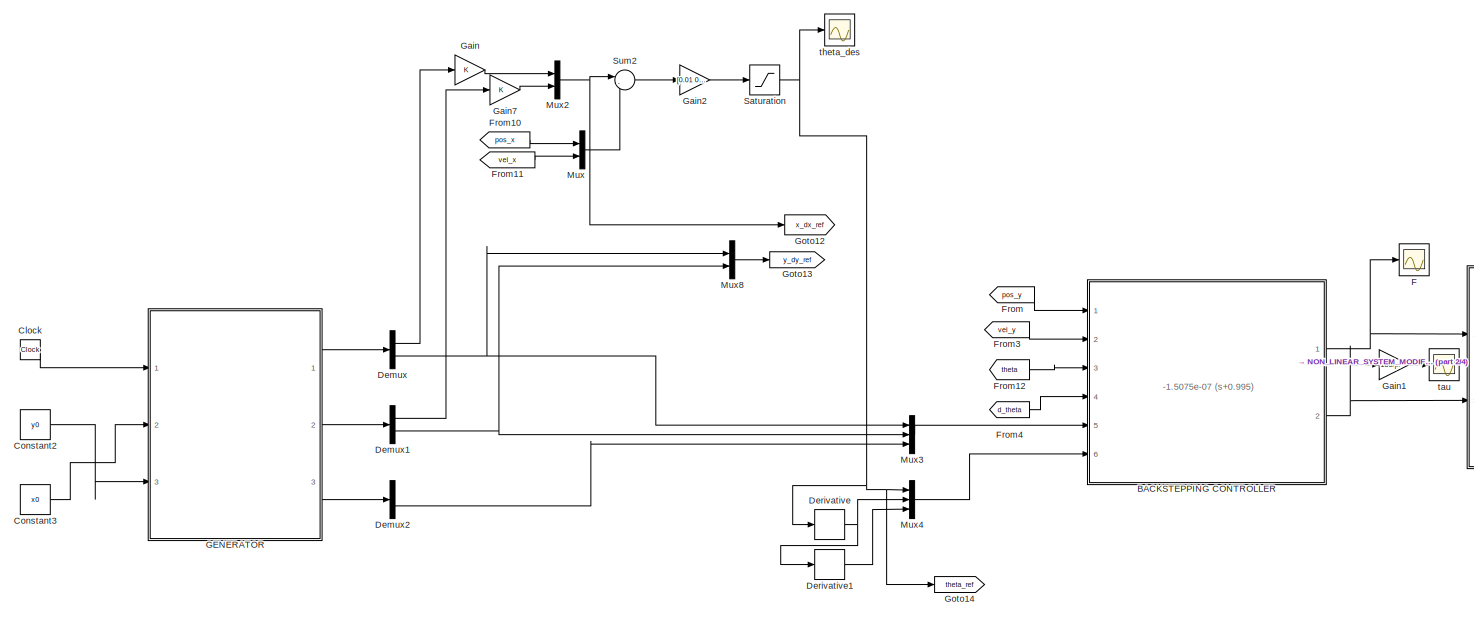
[diagram: root canvas - part 1/4, top left region]
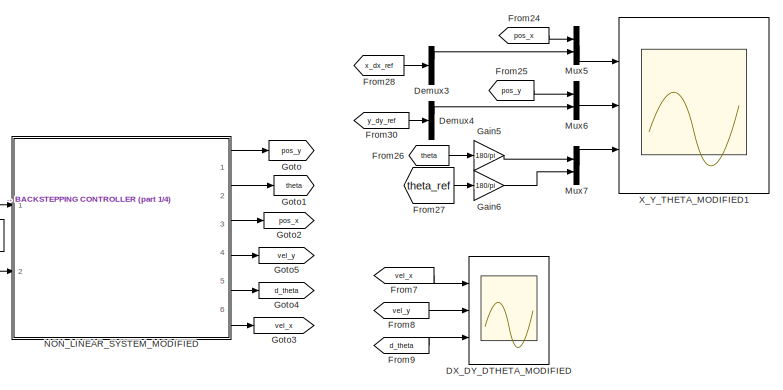
[diagram: root canvas - part 2/4, top right region]
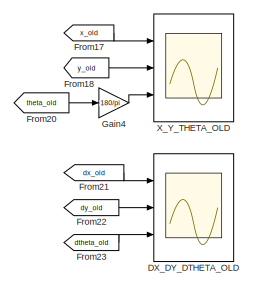
[diagram: root canvas - part 3/4, bottom right region]
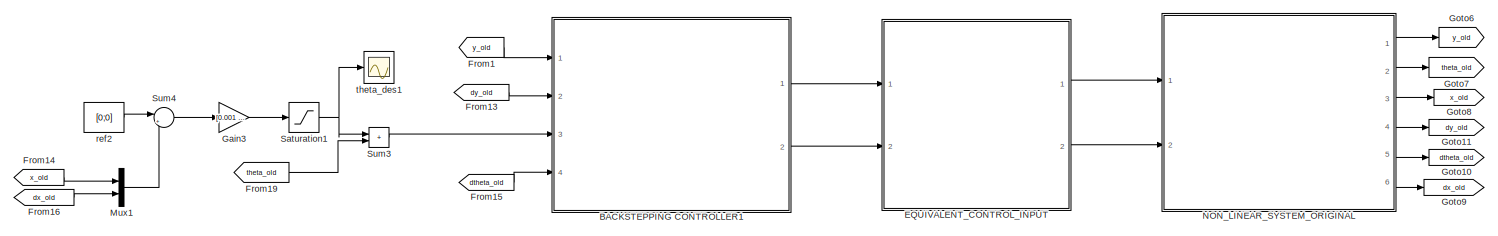
[diagram: root canvas - part 4/4, bottom center region]
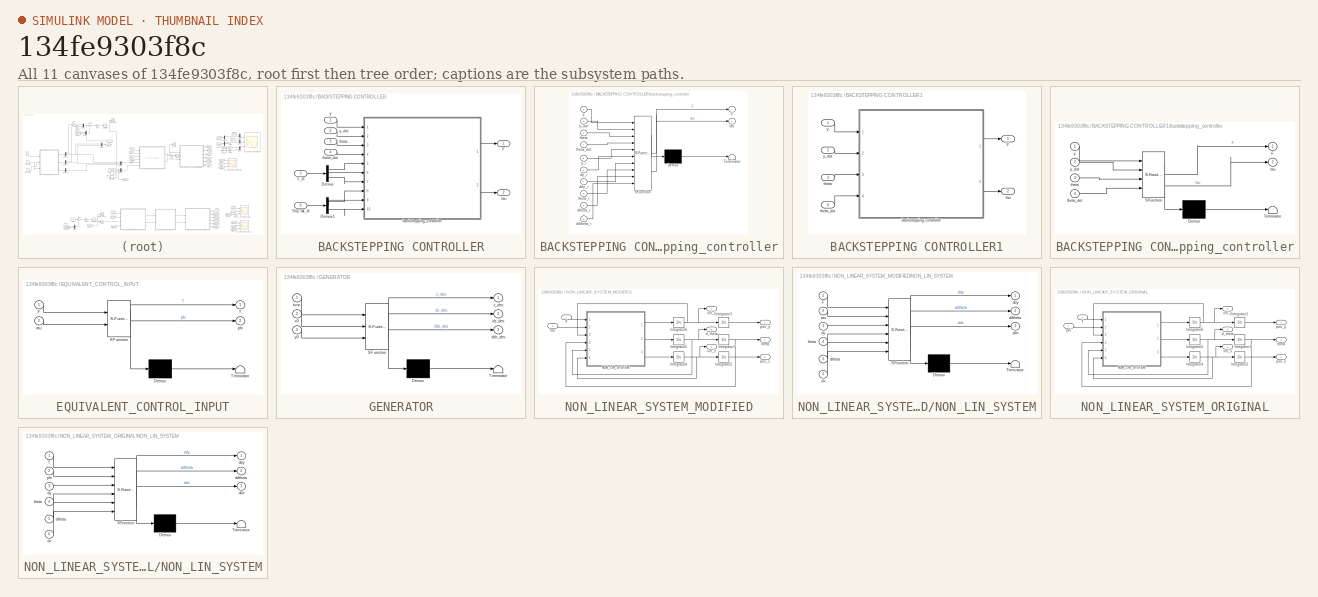
[diagram: thumbnail index - all 11 canvases of the model, root first then tree order]
MODEL slx_134fe9303f8c
KIND model
CONFIG AbsTol = auto
CONFIG EnableMultiTasking = off
CONFIG FixedStep = 1e-3
CONFIG MaxStep = auto
CONFIG MinStep = auto
CONFIG RelTol = 1e-3
CONFIG SampleTimeConstraint = Unconstrained
CONFIG SolverName = FixedStepAuto
CONFIG StartTime = 0.0
CONFIG StopTime = 500
BLOCK [SubSystem] BACKSTEPPING CONTROLLER
  Ports = [6, 2]
  RequestExecContextInheritance = off
BLOCK [Demux] BACKSTEPPING CONTROLLER/Demux
  Outputs = 3
  Ports = [1, 3]
BLOCK [Demux] BACKSTEPPING CONTROLLER/Demux1
  Outputs = 3
  Ports = [1, 3]
BLOCK [Outport] BACKSTEPPING CONTROLLER/F
BLOCK [Inport] BACKSTEPPING CONTROLLER/THETA_R
  Port = 6
BLOCK [Inport] BACKSTEPPING CONTROLLER/Y_R
  Port = 5
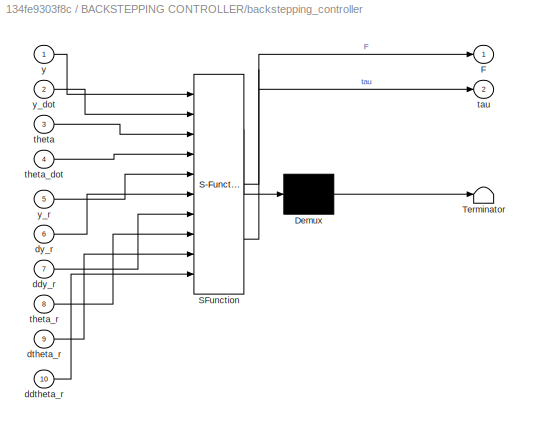
BLOCK [SubSystem] BACKSTEPPING CONTROLLER/backstepping_controller
  ErrorFcn = Stateflow.Translate.translate
  PermitHierarchicalResolution = ExplicitOnly
  Ports = [10, 2]
  RequestExecContextInheritance = off
  SFBlockType = MATLAB Function
  TreatAsAtomicUnit = on
BLOCK [Demux] BACKSTEPPING CONTROLLER/backstepping_controller/ Demux 
  Outputs = 1
  Ports = [1, 1]
BLOCK [S-Function] BACKSTEPPING CONTROLLER/backstepping_controller/ SFunction 
  EnableBusSupport = on
  FunctionName = sf_sfun
  Parameters = J_par,M_par,g_par,mu_y_par
  PortCounts = [10 3]
  Ports = [10, 3]
  SFcnIsStateOwnerBlock = off
  SFunctionDeploymentMode = off
  Tag = Stateflow S-Function 1
BLOCK [Terminator] BACKSTEPPING CONTROLLER/backstepping_controller/ Terminator 
BLOCK [Outport] BACKSTEPPING CONTROLLER/backstepping_controller/F
BLOCK [Inport] BACKSTEPPING CONTROLLER/backstepping_controller/ddtheta_r
  Port = 10
BLOCK [Inport] BACKSTEPPING CONTROLLER/backstepping_controller/ddy_r
  Port = 7
BLOCK [Inport] BACKSTEPPING CONTROLLER/backstepping_controller/dtheta_r
  Port = 9
BLOCK [Inport] BACKSTEPPING CONTROLLER/backstepping_controller/dy_r
  Port = 6
BLOCK [Outport] BACKSTEPPING CONTROLLER/backstepping_controller/tau
  Port = 2
BLOCK [Inport] BACKSTEPPING CONTROLLER/backstepping_controller/theta
  Port = 3
BLOCK [Inport] BACKSTEPPING CONTROLLER/backstepping_controller/theta_dot
  Port = 4
BLOCK [Inport] BACKSTEPPING CONTROLLER/backstepping_controller/theta_r
  Port = 8
BLOCK [Inport] BACKSTEPPING CONTROLLER/backstepping_controller/y
BLOCK [Inport] BACKSTEPPING CONTROLLER/backstepping_controller/y_dot
  Port = 2
BLOCK [Inport] BACKSTEPPING CONTROLLER/backstepping_controller/y_r
  Port = 5
BLOCK [Outport] BACKSTEPPING CONTROLLER/tau
  Port = 2
BLOCK [Inport] BACKSTEPPING CONTROLLER/theta
  Port = 3
BLOCK [Inport] BACKSTEPPING CONTROLLER/theta_dot
  Port = 4
BLOCK [Inport] BACKSTEPPING CONTROLLER/y
BLOCK [Inport] BACKSTEPPING CONTROLLER/y_dot
  Port = 2
BLOCK [SubSystem] BACKSTEPPING CONTROLLER1
  Ports = [4, 2]
  RequestExecContextInheritance = off
BLOCK [Outport] BACKSTEPPING CONTROLLER1/F
BLOCK [SubSystem] BACKSTEPPING CONTROLLER1/backstepping_controller
  ErrorFcn = Stateflow.Translate.translate
  PermitHierarchicalResolution = ExplicitOnly
  Ports = [4, 2]
  RequestExecContextInheritance = off
  SFBlockType = MATLAB Function
  TreatAsAtomicUnit = on
BLOCK [Demux] BACKSTEPPING CONTROLLER1/backstepping_controller/ Demux 
  Outputs = 1
  Ports = [1, 1]
BLOCK [S-Function] BACKSTEPPING CONTROLLER1/backstepping_controller/ SFunction 
  EnableBusSupport = on
  FunctionName = sf_sfun
  Parameters = J_par,M_par,g_par,mu_y_par
  PortCounts = [4 3]
  Ports = [4, 3]
  SFcnIsStateOwnerBlock = off
  SFunctionDeploymentMode = off
  Tag = Stateflow S-Function 4
BLOCK [Terminator] BACKSTEPPING CONTROLLER1/backstepping_controller/ Terminator 
BLOCK [Outport] BACKSTEPPING CONTROLLER1/backstepping_controller/F
BLOCK [Outport] BACKSTEPPING CONTROLLER1/backstepping_controller/tau
  Port = 2
BLOCK [Inport] BACKSTEPPING CONTROLLER1/backstepping_controller/theta
  Port = 3
BLOCK [Inport] BACKSTEPPING CONTROLLER1/backstepping_controller/theta_dot
  Port = 4
BLOCK [Inport] BACKSTEPPING CONTROLLER1/backstepping_controller/y
BLOCK [Inport] BACKSTEPPING CONTROLLER1/backstepping_controller/y_dot
  Port = 2
BLOCK [Outport] BACKSTEPPING CONTROLLER1/tau
  Port = 2
BLOCK [Inport] BACKSTEPPING CONTROLLER1/theta
  Port = 3
BLOCK [Inport] BACKSTEPPING CONTROLLER1/theta_dot
  Port = 4
BLOCK [Inport] BACKSTEPPING CONTROLLER1/y
BLOCK [Inport] BACKSTEPPING CONTROLLER1/y_dot
  Port = 2
BLOCK [Clock] Clock
BLOCK [Constant] Constant2
  Value = y0
BLOCK [Constant] Constant3
  Value = x0
BLOCK [Scope] DX_DY_DTHETA_MODIFIED
  Floating = off
  NumInputPorts = 3
  Ports = [3]
  ScopeSpecificationString = Simulink.scopes.TimeScopeBlockCfg('CurrentConfiguration', extmgr.ConfigurationSet(extmgr.Configuration('Core','General UI',true),extmgr.Configuration('Core','Source UI',true),extmgr.Configuration('Sources','WiredSimulink',true,'DataLoggingVariableName','ScopeData5'),extmgr.Configuration('Visuals','Time Domain',true,'SerializedDisplays',{struct('MinYLimReal','-2.51954','MaxYLimReal','1.10742','YLab...<+2740ch>
BLOCK [Scope] DX_DY_DTHETA_OLD
  Floating = off
  NumInputPorts = 3
  Ports = [3]
  ScopeSpecificationString = Simulink.scopes.TimeScopeBlockCfg('CurrentConfiguration', extmgr.ConfigurationSet(extmgr.Configuration('Core','General UI',true),extmgr.Configuration('Core','Source UI',true),extmgr.Configuration('Sources','WiredSimulink',true,'DataLoggingVariableName','ScopeData3'),extmgr.Configuration('Visuals','Time Domain',true,'SerializedDisplays',{struct('MinYLimReal','-3.50772','MaxYLimReal','1.67706','YLab...<+2764ch>
BLOCK [Demux] Demux
  Outputs = 2
  Ports = [1, 2]
BLOCK [Demux] Demux1
  Outputs = 2
  Ports = [1, 2]
BLOCK [Demux] Demux2
  Outputs = 2
  Ports = [1, 2]
BLOCK [Demux] Demux3
  Outputs = 2
  Ports = [1, 2]
BLOCK [Demux] Demux4
  Outputs = 2
  Ports = [1, 2]
BLOCK [Derivative] Derivative
BLOCK [Derivative] Derivative1
BLOCK [SubSystem] EQUIVALENT_CONTROL_INPUT
  ErrorFcn = Stateflow.Translate.translate
  PermitHierarchicalResolution = ExplicitOnly
  Ports = [2, 2]
  RequestExecContextInheritance = off
  SFBlockType = MATLAB Function
  TreatAsAtomicUnit = on
BLOCK [Demux] EQUIVALENT_CONTROL_INPUT/ Demux 
  Outputs = 1
  Ports = [1, 1]
BLOCK [S-Function] EQUIVALENT_CONTROL_INPUT/ SFunction 
  EnableBusSupport = on
  FunctionName = sf_sfun
  Parameters = l_par
  PortCounts = [2 3]
  Ports = [2, 3]
  SFcnIsStateOwnerBlock = off
  SFunctionDeploymentMode = off
  Tag = Stateflow S-Function 5
BLOCK [Terminator] EQUIVALENT_CONTROL_INPUT/ Terminator 
BLOCK [Inport] EQUIVALENT_CONTROL_INPUT/F
BLOCK [Outport] EQUIVALENT_CONTROL_INPUT/T
BLOCK [Outport] EQUIVALENT_CONTROL_INPUT/phi
  Port = 2
BLOCK [Inport] EQUIVALENT_CONTROL_INPUT/tau
  Port = 2
BLOCK [Scope] F
  Floating = off
  NumInputPorts = 1
  Ports = [1]
  ScopeSpecificationString = Simulink.scopes.TimeScopeBlockCfg('CurrentConfiguration', extmgr.ConfigurationSet(extmgr.Configuration('Core','General UI',true),extmgr.Configuration('Core','Source UI',true),extmgr.Configuration('Sources','WiredSimulink',true,'DataLoggingVariableName','ScopeData2'),extmgr.Configuration('Visuals','Time Domain',true,'SerializedDisplays',{struct('MinYLimReal','4396836.23993','MaxYLimReal','7454331.5...<+1501ch>
BLOCK [From] From
  GotoTag = pos_y
BLOCK [From] From1
  GotoTag = y_old
BLOCK [From] From10
  GotoTag = pos_x
BLOCK [From] From11
  GotoTag = vel_x
BLOCK [From] From12
  GotoTag = theta
BLOCK [From] From13
  GotoTag = dy_old
BLOCK [From] From14
  GotoTag = x_old
BLOCK [From] From15
  GotoTag = dtheta_old
BLOCK [From] From16
  GotoTag = dx_old
BLOCK [From] From17
  GotoTag = x_old
BLOCK [From] From18
  GotoTag = y_old
BLOCK [From] From19
  GotoTag = theta_old
BLOCK [From] From20
  GotoTag = theta_old
BLOCK [From] From21
  GotoTag = dx_old
BLOCK [From] From22
  GotoTag = dy_old
BLOCK [From] From23
  GotoTag = dtheta_old
BLOCK [From] From24
  GotoTag = pos_x
BLOCK [From] From25
  GotoTag = pos_y
BLOCK [From] From26
  GotoTag = theta
BLOCK [From] From27
  GotoTag = theta_ref
BLOCK [From] From28
  GotoTag = x_dx_ref
BLOCK [From] From3
  GotoTag = vel_y
BLOCK [From] From30
  GotoTag = y_dy_ref
BLOCK [From] From4
  GotoTag = d_theta
BLOCK [From] From7
  GotoTag = vel_x
BLOCK [From] From8
  GotoTag = vel_y
BLOCK [From] From9
  GotoTag = d_theta
BLOCK [SubSystem] GENERATOR
  ErrorFcn = Stateflow.Translate.translate
  PermitHierarchicalResolution = ExplicitOnly
  Ports = [3, 3]
  RequestExecContextInheritance = off
  SFBlockType = MATLAB Function
  TreatAsAtomicUnit = on
BLOCK [Demux] GENERATOR/ Demux 
  Outputs = 1
  Ports = [1, 1]
BLOCK [S-Function] GENERATOR/ SFunction 
  EnableBusSupport = on
  FunctionName = sf_sfun
  PortCounts = [3 4]
  Ports = [3, 4]
  SFcnIsStateOwnerBlock = off
  SFunctionDeploymentMode = off
  Tag = Stateflow S-Function 9
BLOCK [Terminator] GENERATOR/ Terminator 
BLOCK [Outport] GENERATOR/ddz_des
  Port = 3
BLOCK [Outport] GENERATOR/dz_des
  Port = 2
BLOCK [Inport] GENERATOR/time
BLOCK [Inport] GENERATOR/x0
  Port = 2
BLOCK [Inport] GENERATOR/y0
  Port = 3
BLOCK [Outport] GENERATOR/z_des
BLOCK [Gain] Gain
BLOCK [Gain] Gain1
  Gain = 180/pi
BLOCK [Gain] Gain2
  Gain = [0.01 0.05]
  Multiplication = Matrix(K*u)
BLOCK [Gain] Gain3
  Gain = [0.001 0.05]
  Multiplication = Matrix(K*u)
BLOCK [Gain] Gain4
  Gain = 180/pi
BLOCK [Gain] Gain5
  Gain = 180/pi
BLOCK [Gain] Gain6
  Gain = 180/pi
BLOCK [Gain] Gain7
BLOCK [Goto] Goto
  GotoTag = pos_y
BLOCK [Goto] Goto1
  GotoTag = theta
BLOCK [Goto] Goto10
  GotoTag = dtheta_old
BLOCK [Goto] Goto11
  GotoTag = dy_old
BLOCK [Goto] Goto12
  GotoTag = x_dx_ref
BLOCK [Goto] Goto13
  GotoTag = y_dy_ref
BLOCK [Goto] Goto14
  GotoTag = theta_ref
BLOCK [Goto] Goto2
  GotoTag = pos_x
BLOCK [Goto] Goto3
  GotoTag = vel_x
BLOCK [Goto] Goto4
  GotoTag = d_theta
BLOCK [Goto] Goto5
  GotoTag = vel_y
BLOCK [Goto] Goto6
  GotoTag = y_old
BLOCK [Goto] Goto7
  GotoTag = theta_old
BLOCK [Goto] Goto8
  GotoTag = x_old
BLOCK [Goto] Goto9
  GotoTag = dx_old
BLOCK [Mux] Mux
  DisplayOption = bar
  Inputs = 2
  Ports = [2, 1]
BLOCK [Mux] Mux1
  DisplayOption = bar
  Inputs = 2
  Ports = [2, 1]
BLOCK [Mux] Mux2
  DisplayOption = bar
  Inputs = 2
  Ports = [2, 1]
BLOCK [Mux] Mux3
  DisplayOption = bar
  Inputs = 3
  Ports = [3, 1]
BLOCK [Mux] Mux4
  DisplayOption = bar
  Inputs = 3
  Ports = [3, 1]
BLOCK [Mux] Mux5
  DisplayOption = bar
  Inputs = 2
  Ports = [2, 1]
BLOCK [Mux] Mux6
  DisplayOption = bar
  Inputs = 2
  Ports = [2, 1]
BLOCK [Mux] Mux7
  DisplayOption = bar
  Inputs = 2
  Ports = [2, 1]
BLOCK [Mux] Mux8
  DisplayOption = bar
  Inputs = 2
  Ports = [2, 1]
BLOCK [SubSystem] NON_LINEAR_SYSTEM_MODIFIED
  Ports = [2, 6]
  RequestExecContextInheritance = off
BLOCK [Inport] NON_LINEAR_SYSTEM_MODIFIED/F
BLOCK [Integrator] NON_LINEAR_SYSTEM_MODIFIED/Integrator1
  InitialCondition = y0
  Ports = [1, 1]
BLOCK [Integrator] NON_LINEAR_SYSTEM_MODIFIED/Integrator2
  InitialCondition = x0
  Ports = [1, 1]
BLOCK [Integrator] NON_LINEAR_SYSTEM_MODIFIED/Integrator4
  Ports = [1, 1]
BLOCK [Integrator] NON_LINEAR_SYSTEM_MODIFIED/Integrator5
  Ports = [1, 1]
BLOCK [Integrator] NON_LINEAR_SYSTEM_MODIFIED/Integrator6
  Ports = [1, 1]
BLOCK [Integrator] NON_LINEAR_SYSTEM_MODIFIED/Integrator7
  InitialCondition = theta0
  Ports = [1, 1]
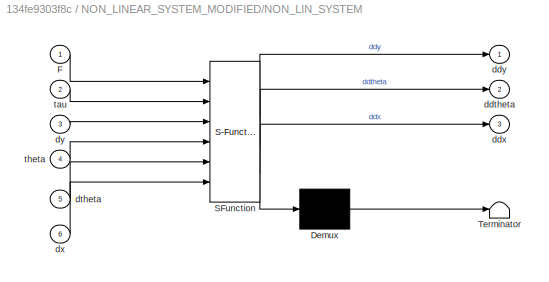
BLOCK [SubSystem] NON_LINEAR_SYSTEM_MODIFIED/NON_LIN_SYSTEM
  ErrorFcn = Stateflow.Translate.translate
  PermitHierarchicalResolution = ExplicitOnly
  Ports = [6, 3]
  RequestExecContextInheritance = off
  SFBlockType = MATLAB Function
  TreatAsAtomicUnit = on
BLOCK [Demux] NON_LINEAR_SYSTEM_MODIFIED/NON_LIN_SYSTEM/ Demux 
  Outputs = 1
  Ports = [1, 1]
BLOCK [S-Function] NON_LINEAR_SYSTEM_MODIFIED/NON_LIN_SYSTEM/ SFunction 
  EnableBusSupport = on
  FunctionName = sf_sfun
  Parameters = J_par,M_par,g_par,l_par,mu_x_par,mu_y_par
  PortCounts = [6 4]
  Ports = [6, 4]
  SFcnIsStateOwnerBlock = off
  SFunctionDeploymentMode = off
  Tag = Stateflow S-Function 2
BLOCK [Terminator] NON_LINEAR_SYSTEM_MODIFIED/NON_LIN_SYSTEM/ Terminator 
BLOCK [Inport] NON_LINEAR_SYSTEM_MODIFIED/NON_LIN_SYSTEM/F
BLOCK [Outport] NON_LINEAR_SYSTEM_MODIFIED/NON_LIN_SYSTEM/ddtheta
  Port = 2
BLOCK [Outport] NON_LINEAR_SYSTEM_MODIFIED/NON_LIN_SYSTEM/ddx
  Port = 3
BLOCK [Outport] NON_LINEAR_SYSTEM_MODIFIED/NON_LIN_SYSTEM/ddy
BLOCK [Inport] NON_LINEAR_SYSTEM_MODIFIED/NON_LIN_SYSTEM/dtheta
  Port = 5
BLOCK [Inport] NON_LINEAR_SYSTEM_MODIFIED/NON_LIN_SYSTEM/dx
  Port = 6
BLOCK [Inport] NON_LINEAR_SYSTEM_MODIFIED/NON_LIN_SYSTEM/dy
  Port = 3
BLOCK [Inport] NON_LINEAR_SYSTEM_MODIFIED/NON_LIN_SYSTEM/tau
  Port = 2
BLOCK [Inport] NON_LINEAR_SYSTEM_MODIFIED/NON_LIN_SYSTEM/theta
  Port = 4
BLOCK [Outport] NON_LINEAR_SYSTEM_MODIFIED/d_theta
  Port = 5
BLOCK [Outport] NON_LINEAR_SYSTEM_MODIFIED/pos_x
  Port = 3
BLOCK [Outport] NON_LINEAR_SYSTEM_MODIFIED/pos_y
BLOCK [Inport] NON_LINEAR_SYSTEM_MODIFIED/tau
  Port = 2
BLOCK [Outport] NON_LINEAR_SYSTEM_MODIFIED/theta
  Port = 2
BLOCK [Outport] NON_LINEAR_SYSTEM_MODIFIED/vel_x
  Port = 6
BLOCK [Outport] NON_LINEAR_SYSTEM_MODIFIED/vel_y
  Port = 4
BLOCK [SubSystem] NON_LINEAR_SYSTEM_ORIGINAL
  Ports = [2, 6]
  RequestExecContextInheritance = off
BLOCK [Integrator] NON_LINEAR_SYSTEM_ORIGINAL/Integrator1
  InitialCondition = y0
  Ports = [1, 1]
BLOCK [Integrator] NON_LINEAR_SYSTEM_ORIGINAL/Integrator2
  InitialCondition = x0
  Ports = [1, 1]
BLOCK [Integrator] NON_LINEAR_SYSTEM_ORIGINAL/Integrator4
  Ports = [1, 1]
BLOCK [Integrator] NON_LINEAR_SYSTEM_ORIGINAL/Integrator5
  Ports = [1, 1]
BLOCK [Integrator] NON_LINEAR_SYSTEM_ORIGINAL/Integrator6
  Ports = [1, 1]
BLOCK [Integrator] NON_LINEAR_SYSTEM_ORIGINAL/Integrator7
  InitialCondition = theta0
  Ports = [1, 1]
BLOCK [SubSystem] NON_LINEAR_SYSTEM_ORIGINAL/NON_LIN_SYSTEM
  ErrorFcn = Stateflow.Translate.translate
  PermitHierarchicalResolution = ExplicitOnly
  Ports = [6, 3]
  RequestExecContextInheritance = off
  SFBlockType = MATLAB Function
  TreatAsAtomicUnit = on
BLOCK [Demux] NON_LINEAR_SYSTEM_ORIGINAL/NON_LIN_SYSTEM/ Demux 
  Outputs = 1
  Ports = [1, 1]
BLOCK [S-Function] NON_LINEAR_SYSTEM_ORIGINAL/NON_LIN_SYSTEM/ SFunction 
  EnableBusSupport = on
  FunctionName = sf_sfun
  Parameters = J_par,M_par,g_par,l_par,mu_x_par,mu_y_par
  PortCounts = [6 4]
  Ports = [6, 4]
  SFcnIsStateOwnerBlock = off
  SFunctionDeploymentMode = off
  Tag = Stateflow S-Function 3
BLOCK [Terminator] NON_LINEAR_SYSTEM_ORIGINAL/NON_LIN_SYSTEM/ Terminator 
BLOCK [Inport] NON_LINEAR_SYSTEM_ORIGINAL/NON_LIN_SYSTEM/T
BLOCK [Outport] NON_LINEAR_SYSTEM_ORIGINAL/NON_LIN_SYSTEM/ddtheta
  Port = 2
BLOCK [Outport] NON_LINEAR_SYSTEM_ORIGINAL/NON_LIN_SYSTEM/ddx
  Port = 3
BLOCK [Outport] NON_LINEAR_SYSTEM_ORIGINAL/NON_LIN_SYSTEM/ddy
BLOCK [Inport] NON_LINEAR_SYSTEM_ORIGINAL/NON_LIN_SYSTEM/dtheta
  Port = 5
BLOCK [Inport] NON_LINEAR_SYSTEM_ORIGINAL/NON_LIN_SYSTEM/dx
  Port = 6
BLOCK [Inport] NON_LINEAR_SYSTEM_ORIGINAL/NON_LIN_SYSTEM/dy
  Port = 3
BLOCK [Inport] NON_LINEAR_SYSTEM_ORIGINAL/NON_LIN_SYSTEM/phi
  Port = 2
BLOCK [Inport] NON_LINEAR_SYSTEM_ORIGINAL/NON_LIN_SYSTEM/theta
  Port = 4
BLOCK [Inport] NON_LINEAR_SYSTEM_ORIGINAL/T
BLOCK [Outport] NON_LINEAR_SYSTEM_ORIGINAL/d_theta
  Port = 5
BLOCK [Inport] NON_LINEAR_SYSTEM_ORIGINAL/phi
  Port = 2
BLOCK [Outport] NON_LINEAR_SYSTEM_ORIGINAL/pos_x
  Port = 3
BLOCK [Outport] NON_LINEAR_SYSTEM_ORIGINAL/pos_y
BLOCK [Outport] NON_LINEAR_SYSTEM_ORIGINAL/theta
  Port = 2
BLOCK [Outport] NON_LINEAR_SYSTEM_ORIGINAL/vel_x
  Port = 6
BLOCK [Outport] NON_LINEAR_SYSTEM_ORIGINAL/vel_y
  Port = 4
BLOCK [Saturate] Saturation
  LowerLimit = -0.2
  UpperLimit = 0.2
BLOCK [Saturate] Saturation1
  LowerLimit = -0.2
  UpperLimit = 0.2
BLOCK [Sum] Sum2
  Inputs = |-+
  Ports = [2, 1]
BLOCK [Sum] Sum3
  IconShape = rectangular
  Inputs = |++
  Ports = [2, 1]
BLOCK [Sum] Sum4
  Inputs = |+-
  Ports = [2, 1]
BLOCK [Scope] X_Y_THETA_MODIFIED1
  Floating = off
  NumInputPorts = 3
  Ports = [3]
  ScopeSpecificationString = Simulink.scopes.TimeScopeBlockCfg('CurrentConfiguration', extmgr.ConfigurationSet(extmgr.Configuration('Core','General UI',true),extmgr.Configuration('Core','Source UI',true),extmgr.Configuration('Sources','WiredSimulink',true,'DataLoggingVariableName','ScopeData1'),extmgr.Configuration('Visuals','Time Domain',true,'SerializedDisplays',{struct('MinYLimReal','-25.22923','MaxYLimReal','29.22906','YL...<+3013ch>
BLOCK [Scope] X_Y_THETA_OLD
  Floating = off
  NumInputPorts = 3
  Ports = [3]
  ScopeSpecificationString = Simulink.scopes.TimeScopeBlockCfg('CurrentConfiguration', extmgr.ConfigurationSet(extmgr.Configuration('Core','General UI',true),extmgr.Configuration('Core','Source UI',true),extmgr.Configuration('Sources','WiredSimulink',true,'DataLoggingVariableName','ScopeData1'),extmgr.Configuration('Visuals','Time Domain',true,'SerializedDisplays',{struct('MinYLimReal','-8.6483','MaxYLimReal','0.96092','YLabe...<+2871ch>
BLOCK [Constant] ref2
  Value = [0;0]
BLOCK [Scope] tau
  Floating = off
  NumInputPorts = 1
  Ports = [1]
  ScopeSpecificationString = Simulink.scopes.TimeScopeBlockCfg('CurrentConfiguration', extmgr.ConfigurationSet(extmgr.Configuration('Core','General UI',true),extmgr.Configuration('Core','Source UI',true),extmgr.Configuration('Sources','WiredSimulink',true,'DataLoggingVariableName','ScopeData3'),extmgr.Configuration('Visuals','Time Domain',true,'SerializedDisplays',{struct('MinYLimReal','-42685683.33017','MaxYLimReal','9968205...<+1460ch>
BLOCK [Scope] theta_des
  Floating = off
  NumInputPorts = 1
  Ports = [1]
  ScopeSpecificationString = Simulink.scopes.TimeScopeBlockCfg('CurrentConfiguration', extmgr.ConfigurationSet(extmgr.Configuration('Core','General UI',true),extmgr.Configuration('Core','Source UI',true),extmgr.Configuration('Sources','WiredSimulink',true,'DataLoggingVariableName','ScopeData1'),extmgr.Configuration('Visuals','Time Domain',true,'SerializedDisplays',{struct('MinYLimReal','-0.22875','MaxYLimReal','0.05875','YLab...<+1395ch>
BLOCK [Scope] theta_des1
  Floating = off
  NumInputPorts = 1
  Ports = [1]
  ScopeSpecificationString = Simulink.scopes.TimeScopeBlockCfg('CurrentConfiguration', extmgr.ConfigurationSet(extmgr.Configuration('Core','General UI',true),extmgr.Configuration('Core','Source UI',true),extmgr.Configuration('Sources','WiredSimulink',true,'DataLoggingVariableName','ScopeData2'),extmgr.Configuration('Visuals','Time Domain',true,'SerializedDisplays',{struct('MinYLimReal','-0.09411','MaxYLimReal','0.19229','YLab...<+1397ch>
ANNOTATION (root): -1.5075e-07 (s+0.995)
LINE BACKSTEPPING CONTROLLER/Demux1:1 -> BACKSTEPPING CONTROLLER/backstepping_controller:8
LINE BACKSTEPPING CONTROLLER/Demux1:2 -> BACKSTEPPING CONTROLLER/backstepping_controller:9
LINE BACKSTEPPING CONTROLLER/Demux1:3 -> BACKSTEPPING CONTROLLER/backstepping_controller:10
LINE BACKSTEPPING CONTROLLER/Demux:1 -> BACKSTEPPING CONTROLLER/backstepping_controller:5
LINE BACKSTEPPING CONTROLLER/Demux:2 -> BACKSTEPPING CONTROLLER/backstepping_controller:6
LINE BACKSTEPPING CONTROLLER/Demux:3 -> BACKSTEPPING CONTROLLER/backstepping_controller:7
LINE BACKSTEPPING CONTROLLER/THETA_R:1 -> BACKSTEPPING CONTROLLER/Demux1:1
LINE BACKSTEPPING CONTROLLER/Y_R:1 -> BACKSTEPPING CONTROLLER/Demux:1
LINE BACKSTEPPING CONTROLLER/backstepping_controller:1 -> BACKSTEPPING CONTROLLER/F:1
LINE BACKSTEPPING CONTROLLER/backstepping_controller:2 -> BACKSTEPPING CONTROLLER/tau:1
LINE BACKSTEPPING CONTROLLER/theta:1 -> BACKSTEPPING CONTROLLER/backstepping_controller:3
LINE BACKSTEPPING CONTROLLER/theta_dot:1 -> BACKSTEPPING CONTROLLER/backstepping_controller:4
LINE BACKSTEPPING CONTROLLER/y:1 -> BACKSTEPPING CONTROLLER/backstepping_controller:1
LINE BACKSTEPPING CONTROLLER/y_dot:1 -> BACKSTEPPING CONTROLLER/backstepping_controller:2
LINE BACKSTEPPING CONTROLLER1/backstepping_controller:1 -> BACKSTEPPING CONTROLLER1/F:1
LINE BACKSTEPPING CONTROLLER1/backstepping_controller:2 -> BACKSTEPPING CONTROLLER1/tau:1
LINE BACKSTEPPING CONTROLLER1/theta:1 -> BACKSTEPPING CONTROLLER1/backstepping_controller:3
LINE BACKSTEPPING CONTROLLER1/theta_dot:1 -> BACKSTEPPING CONTROLLER1/backstepping_controller:4
LINE BACKSTEPPING CONTROLLER1/y:1 -> BACKSTEPPING CONTROLLER1/backstepping_controller:1
LINE BACKSTEPPING CONTROLLER1/y_dot:1 -> BACKSTEPPING CONTROLLER1/backstepping_controller:2
LINE BACKSTEPPING CONTROLLER1:1 -> EQUIVALENT_CONTROL_INPUT:1
LINE BACKSTEPPING CONTROLLER1:2 -> EQUIVALENT_CONTROL_INPUT:2
NET BACKSTEPPING CONTROLLER:1 -> F:1, NON_LINEAR_SYSTEM_MODIFIED:1
NET BACKSTEPPING CONTROLLER:2 -> Gain1:1, NON_LINEAR_SYSTEM_MODIFIED:2
LINE Clock:1 -> GENERATOR:1
LINE Constant2:1 -> GENERATOR:3
LINE Constant3:1 -> GENERATOR:2
LINE Demux1:1 -> Gain7:1
NET Demux1:2 -> Mux3:2, Mux8:2
LINE Demux2:2 -> Mux3:3
LINE Demux3:1 -> Mux5:2
LINE Demux4:1 -> Mux6:2
LINE Demux:1 -> Gain:1
NET Demux:2 -> Mux3:1, Mux8:1
LINE Derivative1:1 -> Mux4:3
NET Derivative:1 -> Derivative1:1, Mux4:2
LINE EQUIVALENT_CONTROL_INPUT:1 -> NON_LINEAR_SYSTEM_ORIGINAL:1
LINE EQUIVALENT_CONTROL_INPUT:2 -> NON_LINEAR_SYSTEM_ORIGINAL:2
LINE From10:1 -> Mux:1
LINE From11:1 -> Mux:2
LINE From12:1 -> BACKSTEPPING CONTROLLER:3
LINE From13:1 -> BACKSTEPPING CONTROLLER1:2
LINE From14:1 -> Mux1:1
LINE From15:1 -> BACKSTEPPING CONTROLLER1:4
LINE From16:1 -> Mux1:2
LINE From17:1 -> X_Y_THETA_OLD:1
LINE From18:1 -> X_Y_THETA_OLD:2
LINE From19:1 -> Sum3:2
LINE From1:1 -> BACKSTEPPING CONTROLLER1:1
LINE From20:1 -> Gain4:1
LINE From21:1 -> DX_DY_DTHETA_OLD:1
LINE From22:1 -> DX_DY_DTHETA_OLD:2
LINE From23:1 -> DX_DY_DTHETA_OLD:3
LINE From24:1 -> Mux5:1
LINE From25:1 -> Mux6:1
LINE From26:1 -> Gain5:1
LINE From27:1 -> Gain6:1
LINE From28:1 -> Demux3:1
LINE From30:1 -> Demux4:1
LINE From3:1 -> BACKSTEPPING CONTROLLER:2
LINE From4:1 -> BACKSTEPPING CONTROLLER:4
LINE From7:1 -> DX_DY_DTHETA_MODIFIED:1
LINE From8:1 -> DX_DY_DTHETA_MODIFIED:2
LINE From9:1 -> DX_DY_DTHETA_MODIFIED:3
LINE From:1 -> BACKSTEPPING CONTROLLER:1
LINE GENERATOR:1 -> Demux:1
LINE GENERATOR:2 -> Demux1:1
LINE GENERATOR:3 -> Demux2:1
LINE Gain1:1 -> tau:1
LINE Gain2:1 -> Saturation:1
LINE Gain3:1 -> Saturation1:1
LINE Gain4:1 -> X_Y_THETA_OLD:3
LINE Gain5:1 -> Mux7:1
LINE Gain6:1 -> Mux7:2
LINE Gain7:1 -> Mux2:2
LINE Gain:1 -> Mux2:1
LINE Mux1:1 -> Sum4:2
NET Mux2:1 -> Goto12:1, Sum2:1
LINE Mux3:1 -> BACKSTEPPING CONTROLLER:5
LINE Mux4:1 -> BACKSTEPPING CONTROLLER:6
LINE Mux5:1 -> X_Y_THETA_MODIFIED1:1
LINE Mux6:1 -> X_Y_THETA_MODIFIED1:2
LINE Mux7:1 -> X_Y_THETA_MODIFIED1:3
LINE Mux8:1 -> Goto13:1
LINE Mux:1 -> Sum2:2
LINE NON_LINEAR_SYSTEM_MODIFIED/F:1 -> NON_LINEAR_SYSTEM_MODIFIED/NON_LIN_SYSTEM:1
LINE NON_LINEAR_SYSTEM_MODIFIED/Integrator1:1 -> NON_LINEAR_SYSTEM_MODIFIED/pos_y:1
LINE NON_LINEAR_SYSTEM_MODIFIED/Integrator2:1 -> NON_LINEAR_SYSTEM_MODIFIED/pos_x:1
NET NON_LINEAR_SYSTEM_MODIFIED/Integrator4:1 -> NON_LINEAR_SYSTEM_MODIFIED/Integrator2:1, NON_LINEAR_SYSTEM_MODIFIED/NON_LIN_SYSTEM:6, NON_LINEAR_SYSTEM_MODIFIED/vel_x:1
NET NON_LINEAR_SYSTEM_MODIFIED/Integrator5:1 -> NON_LINEAR_SYSTEM_MODIFIED/Integrator7:1, NON_LINEAR_SYSTEM_MODIFIED/NON_LIN_SYSTEM:5, NON_LINEAR_SYSTEM_MODIFIED/d_theta:1
NET NON_LINEAR_SYSTEM_MODIFIED/Integrator6:1 -> NON_LINEAR_SYSTEM_MODIFIED/Integrator1:1, NON_LINEAR_SYSTEM_MODIFIED/NON_LIN_SYSTEM:3, NON_LINEAR_SYSTEM_MODIFIED/vel_y:1
NET NON_LINEAR_SYSTEM_MODIFIED/Integrator7:1 -> NON_LINEAR_SYSTEM_MODIFIED/NON_LIN_SYSTEM:4, NON_LINEAR_SYSTEM_MODIFIED/theta:1
LINE NON_LINEAR_SYSTEM_MODIFIED/NON_LIN_SYSTEM:1 -> NON_LINEAR_SYSTEM_MODIFIED/Integrator6:1
LINE NON_LINEAR_SYSTEM_MODIFIED/NON_LIN_SYSTEM:2 -> NON_LINEAR_SYSTEM_MODIFIED/Integrator5:1
LINE NON_LINEAR_SYSTEM_MODIFIED/NON_LIN_SYSTEM:3 -> NON_LINEAR_SYSTEM_MODIFIED/Integrator4:1
LINE NON_LINEAR_SYSTEM_MODIFIED/tau:1 -> NON_LINEAR_SYSTEM_MODIFIED/NON_LIN_SYSTEM:2
LINE NON_LINEAR_SYSTEM_MODIFIED:1 -> Goto:1
LINE NON_LINEAR_SYSTEM_MODIFIED:2 -> Goto1:1
LINE NON_LINEAR_SYSTEM_MODIFIED:3 -> Goto2:1
LINE NON_LINEAR_SYSTEM_MODIFIED:4 -> Goto5:1
LINE NON_LINEAR_SYSTEM_MODIFIED:5 -> Goto4:1
LINE NON_LINEAR_SYSTEM_MODIFIED:6 -> Goto3:1
LINE NON_LINEAR_SYSTEM_ORIGINAL/Integrator1:1 -> NON_LINEAR_SYSTEM_ORIGINAL/pos_y:1
LINE NON_LINEAR_SYSTEM_ORIGINAL/Integrator2:1 -> NON_LINEAR_SYSTEM_ORIGINAL/pos_x:1
NET NON_LINEAR_SYSTEM_ORIGINAL/Integrator4:1 -> NON_LINEAR_SYSTEM_ORIGINAL/Integrator2:1, NON_LINEAR_SYSTEM_ORIGINAL/NON_LIN_SYSTEM:6, NON_LINEAR_SYSTEM_ORIGINAL/vel_x:1
NET NON_LINEAR_SYSTEM_ORIGINAL/Integrator5:1 -> NON_LINEAR_SYSTEM_ORIGINAL/Integrator7:1, NON_LINEAR_SYSTEM_ORIGINAL/NON_LIN_SYSTEM:5, NON_LINEAR_SYSTEM_ORIGINAL/d_theta:1
NET NON_LINEAR_SYSTEM_ORIGINAL/Integrator6:1 -> NON_LINEAR_SYSTEM_ORIGINAL/Integrator1:1, NON_LINEAR_SYSTEM_ORIGINAL/NON_LIN_SYSTEM:3, NON_LINEAR_SYSTEM_ORIGINAL/vel_y:1
NET NON_LINEAR_SYSTEM_ORIGINAL/Integrator7:1 -> NON_LINEAR_SYSTEM_ORIGINAL/NON_LIN_SYSTEM:4, NON_LINEAR_SYSTEM_ORIGINAL/theta:1
LINE NON_LINEAR_SYSTEM_ORIGINAL/NON_LIN_SYSTEM:1 -> NON_LINEAR_SYSTEM_ORIGINAL/Integrator6:1
LINE NON_LINEAR_SYSTEM_ORIGINAL/NON_LIN_SYSTEM:2 -> NON_LINEAR_SYSTEM_ORIGINAL/Integrator5:1
LINE NON_LINEAR_SYSTEM_ORIGINAL/NON_LIN_SYSTEM:3 -> NON_LINEAR_SYSTEM_ORIGINAL/Integrator4:1
LINE NON_LINEAR_SYSTEM_ORIGINAL/T:1 -> NON_LINEAR_SYSTEM_ORIGINAL/NON_LIN_SYSTEM:1
LINE NON_LINEAR_SYSTEM_ORIGINAL/phi:1 -> NON_LINEAR_SYSTEM_ORIGINAL/NON_LIN_SYSTEM:2
LINE NON_LINEAR_SYSTEM_ORIGINAL:1 -> Goto6:1
LINE NON_LINEAR_SYSTEM_ORIGINAL:2 -> Goto7:1
LINE NON_LINEAR_SYSTEM_ORIGINAL:3 -> Goto8:1
LINE NON_LINEAR_SYSTEM_ORIGINAL:4 -> Goto11:1
LINE NON_LINEAR_SYSTEM_ORIGINAL:5 -> Goto10:1
LINE NON_LINEAR_SYSTEM_ORIGINAL:6 -> Goto9:1
NET Saturation1:1 -> Sum3:1, theta_des1:1
NET Saturation:1 -> Derivative:1, Goto14:1, Mux4:1, theta_des:1
LINE Sum2:1 -> Gain2:1
LINE Sum3:1 -> BACKSTEPPING CONTROLLER1:3
LINE Sum4:1 -> Gain3:1
LINE ref2:1 -> Sum4:1
note: NET lines group one-source signal fan-out (src -> all destinations, sorted); 1:1 wires keep LINE
CHART GENERATOR states=1 transitions=1
  STATE_LABEL 'eML_blk_kernel()'
  STATE_LABEL 'SCRIPT:\nfunction  [z_des, dz_des, ddz_des] = fcn(time,x0,y0)\nt= time;\npos_init = [x0;y0];\nz_des = pos_init + [20*sin(0.1*t); 10*sin(0.2*t)];\ndz_des = [cos(0.1*t)*2; cos(0.2*t)*2];\nddz_des = [-sin(0.1*t)*0.2; -sin(0.2*t)*0.4];\n\n% pos_init = [y0;theta0];\n% z_des = pos_init + [20*sin(0.1*t); 10*pi/180*sin(0.2*t)];\n% dz_des = [cos(0.1*t)*2; pi/180*cos(0.2*t)*2];\n% ddz_des = [-sin(0.1*t)*0.2; -pi/180*s...<+21ch>'
CHART BACKSTEPPING CONTROLLER/backstepping_controller states=1 transitions=1
  STATE_LABEL 'eML_blk_kernel()'
  STATE_LABEL 'SCRIPT:\nfunction [F,tau] = fcn(y,y_dot,theta,theta_dot, y_r, dy_r, ddy_r, theta_r, dtheta_r, ddtheta_r, g_par, mu_y_par, J_par, M_par)\n\n% F = M_par*(-2*y_dot - y + g_par + (mu_y_par/M_par)*y_dot)/cos(theta);\n% tau = -J_par*(theta + 2*theta_dot);\n\nF = (M_par/cos(theta))*(ddy_r + 2*dy_r + y_r -y_dot*(2-mu_y_par/M_par) - y + g_par);\ntau = J_par*(ddtheta_r + 2*dtheta_r + theta_r -2*theta_dot - theta);...<+5ch>'
CHART NON_LINEAR_SYSTEM_MODIFIED/NON_LIN_SYSTEM states=1 transitions=1
  STATE_LABEL 'eML_blk_kernel()'
  STATE_LABEL 'SCRIPT:\nfunction [ddy, ddtheta, ddx] = fcn(F, tau, dy, theta, dtheta, dx, M_par, mu_x_par, J_par, l_par, mu_y_par, g_par)\n\n% u = [F,tau] here we consider alligned thrusther with y axis and torque\n% tau \nddx = M_par^-1*(-F*sin(theta) - mu_x_par*dx);\nddtheta = J_par^-1*tau;\nddy = M_par^-1*(F*cos(theta) - mu_y_par*dy - M_par*g_par);\n\n\nend'
CHART NON_LINEAR_SYSTEM_ORIGINAL/NON_LIN_SYSTEM states=1 transitions=1
  STATE_LABEL 'eML_blk_kernel()'
  STATE_LABEL 'SCRIPT:\nfunction [ddy, ddtheta, ddx] = fcn(T, phi, dy, theta, dtheta, dx, M_par, mu_x_par, J_par, l_par, mu_y_par, g_par)\n\nddx = M_par^-1*(-T*sin(theta+phi) - mu_x_par*dx);\nddtheta = J_par^-1*(-T*l_par*sin(phi));\nddy = M_par^-1*(T*cos(theta+phi) - mu_y_par*dy - M_par*g_par);\n\n\nend'
CHART BACKSTEPPING CONTROLLER1/backstepping_controller states=1 transitions=1
  STATE_LABEL 'eML_blk_kernel()'
  STATE_LABEL 'SCRIPT:\nfunction [F,tau] = fcn(y,y_dot,theta,theta_dot, g_par, mu_y_par, J_par, M_par)\n\n\nF = M_par*(-2*y_dot - y + g_par + (mu_y_par/M_par)*y_dot)/cos(theta);\ntau = -J_par*(theta + 2*theta_dot);\n\nend'
CHART EQUIVALENT_CONTROL_INPUT states=1 transitions=1
  STATE_LABEL 'eML_blk_kernel()'
  STATE_LABEL 'SCRIPT:\nfunction [T, phi] = fcn(F,tau, l_par)\n\nphi = -atan2(tau,F*l_par);\nT = F/cos(phi);\n\n\n\nend'
CHART  states=0 transitions=0
CHART  states=0 transitions=0
CHART  states=0 transitions=0
CHART  states=0 transitions=0
CHART  states=0 transitions=0
CHART  states=0 transitions=0
